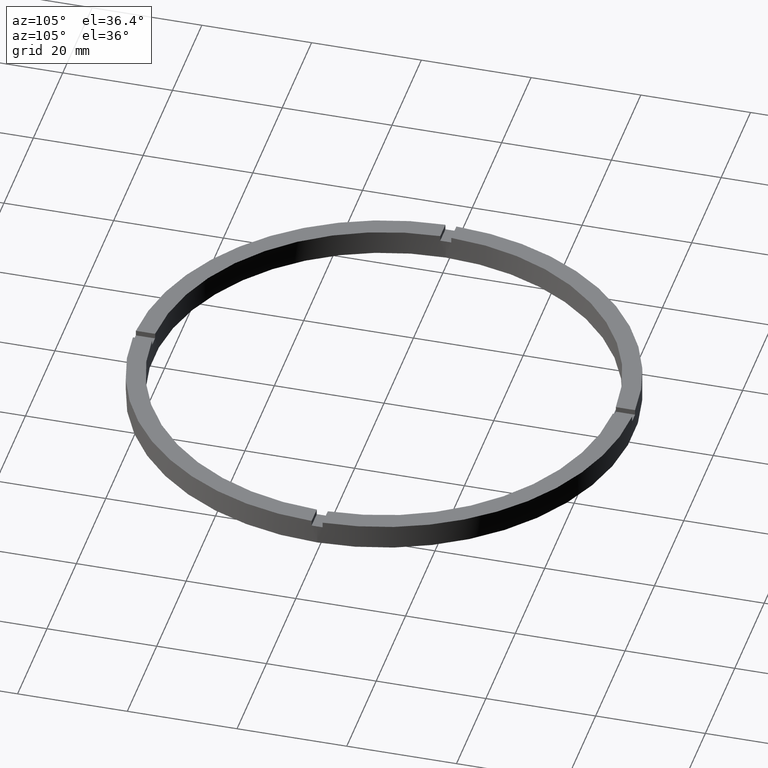
[diagram: clean part render]
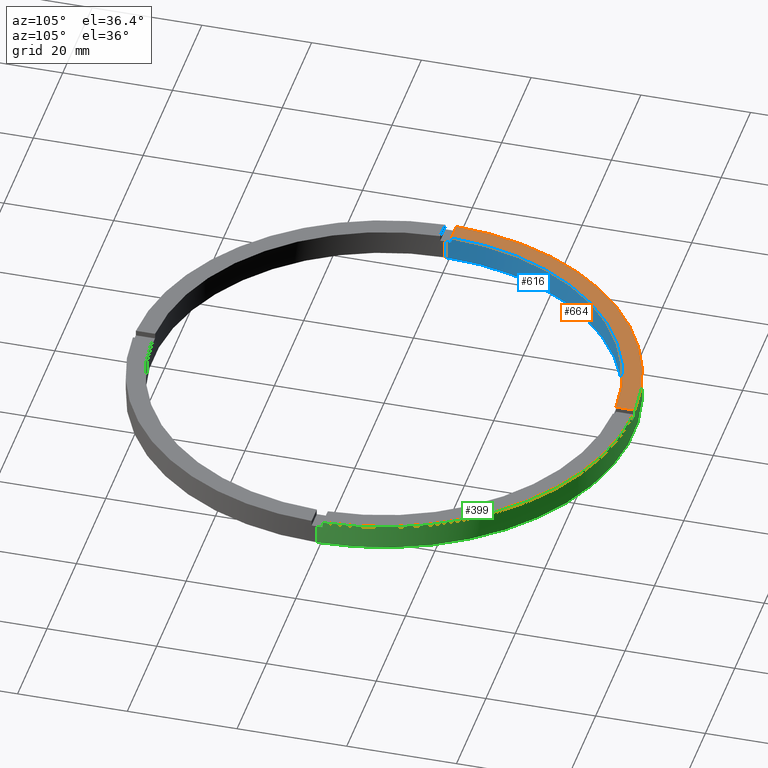
[diagram: same view with three faces highlighted in distinct colors, each labeled with its STEP entity id]
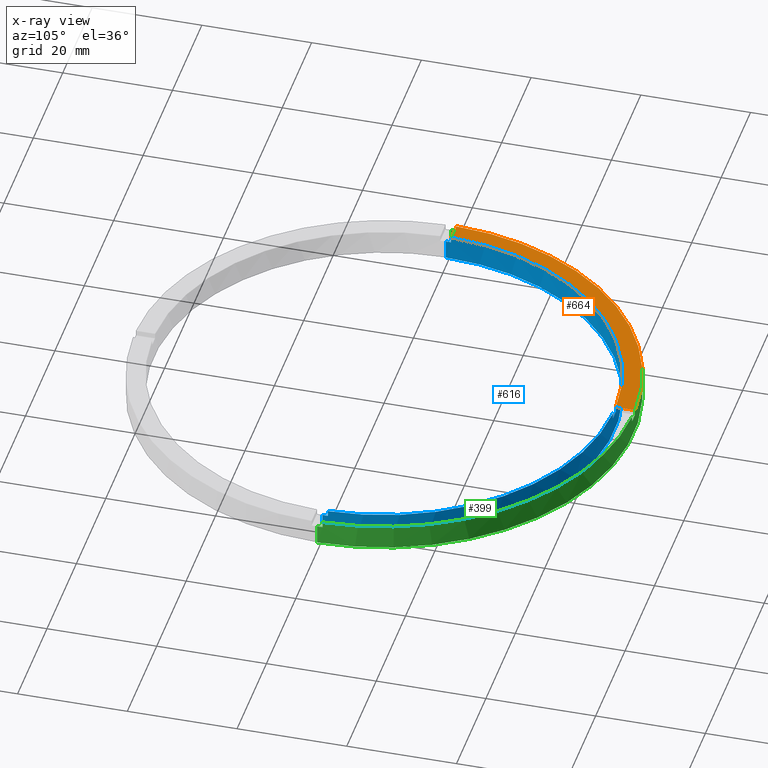
[diagram: x-ray of the same camera — body ghosted, the three highlighted faces saturated]
A machine part, auxiliary view with three faces highlighted in distinct colors.
The next image is the same camera in x-ray (body ghosted, the three faces saturated) — at least one of them is partly hidden behind the body in this view.
Their STEP definitions:

[orange] entity #664 — the highlighted planar face has unit normal (0, 0, 1).
#20 = AXIS2_PLACEMENT_3D ( 'NONE', #435, #27, #140 ) ;
#27 = DIRECTION ( 'NONE',  ( 0.000000000000000000, 0.000000000000000000, 1.000000000000000000 ) ) ;
#80 = EDGE_CURVE ( 'NONE', #759, #739, #530, .T. ) ;
#107 = CIRCLE ( 'NONE', #381, 42.00000000000000000 ) ;
#134 = CARTESIAN_POINT ( 'NONE',  ( -45.48900966167541782, 0.9999999999999701350, 4.500000000000000000 ) ) ;
#140 = DIRECTION ( 'NONE',  ( 1.000000000000000000, 0.000000000000000000, 0.000000000000000000 ) ) ;
#149 = CARTESIAN_POINT ( 'NONE',  ( 0.000000000000000000, 0.000000000000000000, 4.500000000000000000 ) ) ;
#220 = VERTEX_POINT ( 'NONE', #409 ) ;
#226 = CARTESIAN_POINT ( 'NONE',  ( 0.000000000000000000, 0.000000000000000000, 4.500000000000000000 ) ) ;
#228 = ORIENTED_EDGE ( 'NONE', *, *, #592, .F. ) ;
#244 = ORIENTED_EDGE ( 'NONE', *, *, #321, .F. ) ;
#284 = CARTESIAN_POINT ( 'NONE',  ( -1.000000000000026201, 45.48900966167541782, 4.500000000000000000 ) ) ;
#292 = DIRECTION ( 'NONE',  ( 0.000000000000000000, 0.000000000000000000, 1.000000000000000000 ) ) ;
#321 = EDGE_CURVE ( 'NONE', #777, #220, #633, .T. ) ;
#335 = EDGE_CURVE ( 'NONE', #777, #739, #362, .T. ) ;
#337 = DIRECTION ( 'NONE',  ( 1.000000000000000000, 0.000000000000000000, 0.000000000000000000 ) ) ;
#345 = PLANE ( 'NONE',  #598 ) ;
#362 = CIRCLE ( 'NONE', #20, 45.50000000000000000 ) ;
#381 = AXIS2_PLACEMENT_3D ( 'NONE', #226, #292, #337 ) ;
#406 = FACE_OUTER_BOUND ( 'NONE', #741, .T. ) ;
#409 = CARTESIAN_POINT ( 'NONE',  ( -1.000000000000026201, 41.98809355043403713, 4.500000000000000000 ) ) ;
#413 = CARTESIAN_POINT ( 'NONE',  ( -35.50000000000018474, 0.9999999999999720224, 4.500000000000000000 ) ) ;
#435 = CARTESIAN_POINT ( 'NONE',  ( 0.000000000000000000, 0.000000000000000000, 4.500000000000000000 ) ) ;
#438 = CARTESIAN_POINT ( 'NONE',  ( -41.98809355043403713, 0.9999999999999708011, 4.500000000000000000 ) ) ;
#478 = DIRECTION ( 'NONE',  ( 1.000000000000000000, 0.000000000000000000, -0.000000000000000000 ) ) ;
#487 = DIRECTION ( 'NONE',  ( 0.000000000000000000, 0.000000000000000000, 1.000000000000000000 ) ) ;
#508 = DIRECTION ( 'NONE',  ( -1.000000000000000000, -2.168404344971008621E-16, 0.000000000000000000 ) ) ;
#524 = VECTOR ( 'NONE', #508, 1000.000000000000000 ) ;
#530 = LINE ( 'NONE', #413, #524 ) ;
#531 = CARTESIAN_POINT ( 'NONE',  ( -1.000000000000026201, 35.50000000000000000, 4.500000000000000000 ) ) ;
#581 = DIRECTION ( 'NONE',  ( -0.000000000000000000, -1.000000000000000000, -0.000000000000000000 ) ) ;
#592 = EDGE_CURVE ( 'NONE', #220, #759, #107, .T. ) ;
#598 = AXIS2_PLACEMENT_3D ( 'NONE', #149, #487, #478 ) ;
#612 = VECTOR ( 'NONE', #581, 1000.000000000000000 ) ;
#633 = LINE ( 'NONE', #531, #612 ) ;
#664 = ADVANCED_FACE ( 'NONE', ( #406 ), #345, .T. ) ;
#700 = ORIENTED_EDGE ( 'NONE', *, *, #335, .T. ) ;
#702 = ORIENTED_EDGE ( 'NONE', *, *, #80, .F. ) ;
#739 = VERTEX_POINT ( 'NONE', #134 ) ;
#741 = EDGE_LOOP ( 'NONE', ( #244, #700, #702, #228 ) ) ;
#759 = VERTEX_POINT ( 'NONE', #438 ) ;
#777 = VERTEX_POINT ( 'NONE', #284 ) ;

[blue] entity #616 — the highlighted cylindrical surface (partial cylindrical patch) has radius 42 mm, axis along (-0, -0, -1).
#26 = CARTESIAN_POINT ( 'NONE',  ( 0.9999999999999737987, 41.98809355043403713, 4.500000000000000000 ) ) ;
#38 = DIRECTION ( 'NONE',  ( 1.000000000000000000, 0.000000000000000000, 0.000000000000000000 ) ) ;
#50 = EDGE_CURVE ( 'NONE', #210, #519, #241, .T. ) ;
#62 = AXIS2_PLACEMENT_3D ( 'NONE', #580, #394, #593 ) ;
#82 = CARTESIAN_POINT ( 'NONE',  ( 0.000000000000000000, 0.000000000000000000, 0.000000000000000000 ) ) ;
#84 = CIRCLE ( 'NONE', #183, 42.00000000000000000 ) ;
#85 = CARTESIAN_POINT ( 'NONE',  ( 41.98809355043403713, 0.9999999999998436806, 4.500000000000000000 ) ) ;
#87 = CARTESIAN_POINT ( 'NONE',  ( 0.000000000000000000, 0.000000000000000000, 3.499999999999999556 ) ) ;
#90 = DIRECTION ( 'NONE',  ( 0.000000000000000000, 0.000000000000000000, 1.000000000000000000 ) ) ;
#96 = DIRECTION ( 'NONE',  ( 0.000000000000000000, 0.000000000000000000, 1.000000000000000000 ) ) ;
#99 = LINE ( 'NONE', #274, #629 ) ;
#107 = CIRCLE ( 'NONE', #381, 42.00000000000000000 ) ;
#108 = EDGE_CURVE ( 'NONE', #213, #759, #99, .T. ) ;
#109 = LINE ( 'NONE', #779, #643 ) ;
#116 = LINE ( 'NONE', #222, #122 ) ;
#122 = VECTOR ( 'NONE', #761, 1000.000000000000000 ) ;
#124 = CIRCLE ( 'NONE', #591, 42.00000000000000000 ) ;
#137 = DIRECTION ( 'NONE',  ( 1.000000000000000000, 0.000000000000000000, 0.000000000000000000 ) ) ;
#139 = DIRECTION ( 'NONE',  ( 1.000000000000000000, 0.000000000000000000, 0.000000000000000000 ) ) ;
#152 = ORIENTED_EDGE ( 'NONE', *, *, #480, .T. ) ;
#157 = EDGE_LOOP ( 'NONE', ( #507, #426, #184, #195, #714, #711, #176, #199, #468, #475, #152, #451 ) ) ;
#158 = EDGE_CURVE ( 'NONE', #747, #496, #628, .T. ) ;
#167 = CARTESIAN_POINT ( 'NONE',  ( 0.000000000000000000, 0.000000000000000000, 3.499999999999999556 ) ) ;
#176 = ORIENTED_EDGE ( 'NONE', *, *, #545, .F. ) ;
#183 = AXIS2_PLACEMENT_3D ( 'NONE', #167, #96, #536 ) ;
#184 = ORIENTED_EDGE ( 'NONE', *, *, #158, .F. ) ;
#190 = DIRECTION ( 'NONE',  ( 0.000000000000000000, 0.000000000000000000, 1.000000000000000000 ) ) ;
#195 = ORIENTED_EDGE ( 'NONE', *, *, #390, .T. ) ;
#199 = ORIENTED_EDGE ( 'NONE', *, *, #592, .T. ) ;
#210 = VERTEX_POINT ( 'NONE', #221 ) ;
#213 = VERTEX_POINT ( 'NONE', #287 ) ;
#220 = VERTEX_POINT ( 'NONE', #409 ) ;
#221 = CARTESIAN_POINT ( 'NONE',  ( 0.9999999999999737987, 41.98809355043403713, 3.499999999999999556 ) ) ;
#222 = CARTESIAN_POINT ( 'NONE',  ( -1.000000000000026201, 41.98809355043403713, 4.500000000000000000 ) ) ;
#226 = CARTESIAN_POINT ( 'NONE',  ( 0.000000000000000000, 0.000000000000000000, 4.500000000000000000 ) ) ;
#241 = LINE ( 'NONE', #26, #505 ) ;
#242 = VERTEX_POINT ( 'NONE', #490 ) ;
#272 = CARTESIAN_POINT ( 'NONE',  ( -42.00000000000000000, 0.000000000000000000, 4.500000000000000000 ) ) ;
#274 = CARTESIAN_POINT ( 'NONE',  ( -41.98809355043403713, 0.9999999999999708011, 4.500000000000000000 ) ) ;
#287 = CARTESIAN_POINT ( 'NONE',  ( -41.98809355043403713, 0.9999999999999708011, 3.499999999999999556 ) ) ;
#290 = AXIS2_PLACEMENT_3D ( 'NONE', #590, #90, #137 ) ;
#292 = DIRECTION ( 'NONE',  ( 0.000000000000000000, 0.000000000000000000, 1.000000000000000000 ) ) ;
#293 = EDGE_CURVE ( 'NONE', #213, #447, #84, .T. ) ;
#317 = LINE ( 'NONE', #272, #585 ) ;
#318 = CARTESIAN_POINT ( 'NONE',  ( 0.9999999999999737987, 41.98809355043403713, 4.500000000000000000 ) ) ;
#322 = DIRECTION ( 'NONE',  ( -0.000000000000000000, -0.000000000000000000, -1.000000000000000000 ) ) ;
#326 = DIRECTION ( 'NONE',  ( 0.000000000000000000, 0.000000000000000000, 1.000000000000000000 ) ) ;
#337 = DIRECTION ( 'NONE',  ( 1.000000000000000000, 0.000000000000000000, 0.000000000000000000 ) ) ;
#361 = FACE_OUTER_BOUND ( 'NONE', #157, .T. ) ;
#381 = AXIS2_PLACEMENT_3D ( 'NONE', #226, #292, #337 ) ;
#384 = DIRECTION ( 'NONE',  ( 0.000000000000000000, 0.000000000000000000, 1.000000000000000000 ) ) ;
#390 = EDGE_CURVE ( 'NONE', #747, #519, #651, .T. ) ;
#394 = DIRECTION ( 'NONE',  ( -0.000000000000000000, -0.000000000000000000, -1.000000000000000000 ) ) ;
#402 = DIRECTION ( 'NONE',  ( -0.000000000000000000, -0.000000000000000000, -1.000000000000000000 ) ) ;
#403 = DIRECTION ( 'NONE',  ( 0.000000000000000000, -0.000000000000000000, 1.000000000000000000 ) ) ;
#409 = CARTESIAN_POINT ( 'NONE',  ( -1.000000000000026201, 41.98809355043403713, 4.500000000000000000 ) ) ;
#426 = ORIENTED_EDGE ( 'NONE', *, *, #557, .T. ) ;
#438 = CARTESIAN_POINT ( 'NONE',  ( -41.98809355043403713, 0.9999999999999708011, 4.500000000000000000 ) ) ;
#447 = VERTEX_POINT ( 'NONE', #499 ) ;
#451 = ORIENTED_EDGE ( 'NONE', *, *, #588, .F. ) ;
#460 = AXIS2_PLACEMENT_3D ( 'NONE', #87, #384, #38 ) ;
#468 = ORIENTED_EDGE ( 'NONE', *, *, #108, .F. ) ;
#475 = ORIENTED_EDGE ( 'NONE', *, *, #293, .T. ) ;
#480 = EDGE_CURVE ( 'NONE', #447, #242, #317, .T. ) ;
#490 = CARTESIAN_POINT ( 'NONE',  ( -42.00000000000000000, 0.000000000000000000, 0.000000000000000000 ) ) ;
#496 = VERTEX_POINT ( 'NONE', #618 ) ;
#499 = CARTESIAN_POINT ( 'NONE',  ( -42.00000000000000000, 0.000000000000000000, 3.499999999999999556 ) ) ;
#505 = VECTOR ( 'NONE', #190, 1000.000000000000000 ) ;
#507 = ORIENTED_EDGE ( 'NONE', *, *, #565, .F. ) ;
#519 = VERTEX_POINT ( 'NONE', #318 ) ;
#536 = DIRECTION ( 'NONE',  ( 1.000000000000000000, 0.000000000000000000, 0.000000000000000000 ) ) ;
#545 = EDGE_CURVE ( 'NONE', #220, #713, #116, .T. ) ;
#557 = EDGE_CURVE ( 'NONE', #775, #496, #649, .T. ) ;
#565 = EDGE_CURVE ( 'NONE', #775, #721, #109, .T. ) ;
#572 = CARTESIAN_POINT ( 'NONE',  ( -1.000000000000026201, 41.98809355043403713, 3.499999999999999556 ) ) ;
#573 = DIRECTION ( 'NONE',  ( -0.000000000000000000, -0.000000000000000000, -1.000000000000000000 ) ) ;
#580 = CARTESIAN_POINT ( 'NONE',  ( 0.000000000000000000, 0.000000000000000000, 4.500000000000000000 ) ) ;
#585 = VECTOR ( 'NONE', #402, 1000.000000000000000 ) ;
#586 = CARTESIAN_POINT ( 'NONE',  ( 41.98809355043403713, 0.9999999999998436806, 4.500000000000000000 ) ) ;
#588 = EDGE_CURVE ( 'NONE', #721, #242, #630, .T. ) ;
#590 = CARTESIAN_POINT ( 'NONE',  ( 0.000000000000000000, 0.000000000000000000, 4.500000000000000000 ) ) ;
#591 = AXIS2_PLACEMENT_3D ( 'NONE', #596, #403, #715 ) ;
#592 = EDGE_CURVE ( 'NONE', #220, #759, #107, .T. ) ;
#593 = DIRECTION ( 'NONE',  ( -1.000000000000000000, 0.000000000000000000, 0.000000000000000000 ) ) ;
#596 = CARTESIAN_POINT ( 'NONE',  ( 0.000000000000000000, 0.000000000000000000, 3.499999999999999556 ) ) ;
#616 = ADVANCED_FACE ( 'NONE', ( #361 ), #645, .F. ) ;
#618 = CARTESIAN_POINT ( 'NONE',  ( 41.98809355043403713, 0.9999999999998436806, 3.499999999999999556 ) ) ;
#623 = VECTOR ( 'NONE', #573, 1000.000000000000000 ) ;
#628 = LINE ( 'NONE', #586, #623 ) ;
#629 = VECTOR ( 'NONE', #675, 1000.000000000000000 ) ;
#630 = CIRCLE ( 'NONE', #755, 42.00000000000000000 ) ;
#643 = VECTOR ( 'NONE', #322, 1000.000000000000000 ) ;
#645 = CYLINDRICAL_SURFACE ( 'NONE', #62, 42.00000000000000000 ) ;
#649 = CIRCLE ( 'NONE', #460, 42.00000000000000000 ) ;
#651 = CIRCLE ( 'NONE', #290, 42.00000000000000000 ) ;
#675 = DIRECTION ( 'NONE',  ( 0.000000000000000000, 0.000000000000000000, 1.000000000000000000 ) ) ;
#679 = CARTESIAN_POINT ( 'NONE',  ( 42.00000000000000000, 5.143516556418883322E-15, 0.000000000000000000 ) ) ;
#683 = CARTESIAN_POINT ( 'NONE',  ( 42.00000000000000000, 5.143516556418883322E-15, 3.499999999999999556 ) ) ;
#687 = EDGE_CURVE ( 'NONE', #210, #713, #124, .T. ) ;
#711 = ORIENTED_EDGE ( 'NONE', *, *, #687, .T. ) ;
#713 = VERTEX_POINT ( 'NONE', #572 ) ;
#714 = ORIENTED_EDGE ( 'NONE', *, *, #50, .F. ) ;
#715 = DIRECTION ( 'NONE',  ( 1.000000000000000000, 0.000000000000000000, 0.000000000000000000 ) ) ;
#721 = VERTEX_POINT ( 'NONE', #679 ) ;
#747 = VERTEX_POINT ( 'NONE', #85 ) ;
#755 = AXIS2_PLACEMENT_3D ( 'NONE', #82, #326, #139 ) ;
#759 = VERTEX_POINT ( 'NONE', #438 ) ;
#761 = DIRECTION ( 'NONE',  ( -0.000000000000000000, -0.000000000000000000, -1.000000000000000000 ) ) ;
#775 = VERTEX_POINT ( 'NONE', #683 ) ;
#779 = CARTESIAN_POINT ( 'NONE',  ( 42.00000000000000000, 5.143516556418883322E-15, 4.500000000000000000 ) ) ;

[green] entity #399 — the highlighted cylindrical surface (partial cylindrical patch) has radius 45.5 mm, axis along (-0, -0, -1).
#8 = CARTESIAN_POINT ( 'NONE',  ( -1.000000000000026201, 45.48900966167541782, 4.500000000000000000 ) ) ;
#14 = CARTESIAN_POINT ( 'NONE',  ( 45.48900966167542492, 0.9999999999998439026, 4.500000000000000000 ) ) ;
#20 = AXIS2_PLACEMENT_3D ( 'NONE', #435, #27, #140 ) ;
#22 = CARTESIAN_POINT ( 'NONE',  ( 0.9999999999999737987, 45.48900966167541782, 3.499999999999999556 ) ) ;
#27 = DIRECTION ( 'NONE',  ( 0.000000000000000000, 0.000000000000000000, 1.000000000000000000 ) ) ;
#34 = CARTESIAN_POINT ( 'NONE',  ( -45.48900966167541782, 0.9999999999999701350, 3.499999999999999556 ) ) ;
#35 = DIRECTION ( 'NONE',  ( 1.000000000000000000, 0.000000000000000000, 0.000000000000000000 ) ) ;
#49 = DIRECTION ( 'NONE',  ( 0.000000000000000000, 0.000000000000000000, 1.000000000000000000 ) ) ;
#53 = CARTESIAN_POINT ( 'NONE',  ( 0.000000000000000000, 0.000000000000000000, 3.499999999999999556 ) ) ;
#58 = DIRECTION ( 'NONE',  ( -0.000000000000000000, -0.000000000000000000, -1.000000000000000000 ) ) ;
#60 = CYLINDRICAL_SURFACE ( 'NONE', #414, 45.50000000000000000 ) ;
#63 = CARTESIAN_POINT ( 'NONE',  ( 45.50000000000000000, 5.572142936120457130E-15, 4.500000000000000000 ) ) ;
#72 = AXIS2_PLACEMENT_3D ( 'NONE', #491, #485, #724 ) ;
#77 = VECTOR ( 'NONE', #502, 1000.000000000000000 ) ;
#81 = VECTOR ( 'NONE', #644, 1000.000000000000000 ) ;
#97 = EDGE_CURVE ( 'NONE', #188, #470, #264, .T. ) ;
#98 = DIRECTION ( 'NONE',  ( 1.000000000000000000, 0.000000000000000000, 0.000000000000000000 ) ) ;
#104 = CARTESIAN_POINT ( 'NONE',  ( 0.000000000000000000, 0.000000000000000000, 4.500000000000000000 ) ) ;
#118 = LINE ( 'NONE', #529, #369 ) ;
#134 = CARTESIAN_POINT ( 'NONE',  ( -45.48900966167541782, 0.9999999999999701350, 4.500000000000000000 ) ) ;
#140 = DIRECTION ( 'NONE',  ( 1.000000000000000000, 0.000000000000000000, 0.000000000000000000 ) ) ;
#146 = DIRECTION ( 'NONE',  ( -0.000000000000000000, -0.000000000000000000, -1.000000000000000000 ) ) ;
#147 = EDGE_CURVE ( 'NONE', #433, #470, #331, .T. ) ;
#153 = ORIENTED_EDGE ( 'NONE', *, *, #528, .T. ) ;
#154 = ORIENTED_EDGE ( 'NONE', *, *, #658, .F. ) ;
#156 = ORIENTED_EDGE ( 'NONE', *, *, #681, .F. ) ;
#160 = ORIENTED_EDGE ( 'NONE', *, *, #521, .F. ) ;
#164 = VERTEX_POINT ( 'NONE', #374 ) ;
#169 = CARTESIAN_POINT ( 'NONE',  ( 45.48900966167542492, 0.9999999999998439026, 3.499999999999999556 ) ) ;
#171 = VERTEX_POINT ( 'NONE', #684 ) ;
#188 = VERTEX_POINT ( 'NONE', #429 ) ;
#212 = CARTESIAN_POINT ( 'NONE',  ( -45.50000000000000000, 0.000000000000000000, 4.500000000000000000 ) ) ;
#232 = DIRECTION ( 'NONE',  ( 0.000000000000000000, 0.000000000000000000, 1.000000000000000000 ) ) ;
#257 = ORIENTED_EDGE ( 'NONE', *, *, #279, .T. ) ;
#264 = LINE ( 'NONE', #14, #77 ) ;
#279 = EDGE_CURVE ( 'NONE', #433, #465, #338, .T. ) ;
#284 = CARTESIAN_POINT ( 'NONE',  ( -1.000000000000026201, 45.48900966167541782, 4.500000000000000000 ) ) ;
#300 = DIRECTION ( 'NONE',  ( 1.000000000000000000, 0.000000000000000000, 0.000000000000000000 ) ) ;
#324 = EDGE_CURVE ( 'NONE', #717, #164, #354, .T. ) ;
#331 = CIRCLE ( 'NONE', #474, 45.50000000000000000 ) ;
#335 = EDGE_CURVE ( 'NONE', #777, #739, #362, .T. ) ;
#338 = LINE ( 'NONE', #63, #340 ) ;
#340 = VECTOR ( 'NONE', #146, 1000.000000000000000 ) ;
#354 = LINE ( 'NONE', #212, #81 ) ;
#355 = LINE ( 'NONE', #458, #654 ) ;
#362 = CIRCLE ( 'NONE', #20, 45.50000000000000000 ) ;
#369 = VECTOR ( 'NONE', #583, 1000.000000000000000 ) ;
#374 = CARTESIAN_POINT ( 'NONE',  ( -45.50000000000000000, 0.000000000000000000, 0.000000000000000000 ) ) ;
#375 = FACE_OUTER_BOUND ( 'NONE', #452, .T. ) ;
#376 = VECTOR ( 'NONE', #58, 1000.000000000000000 ) ;
#383 = CARTESIAN_POINT ( 'NONE',  ( -45.50000000000000000, 0.000000000000000000, 3.499999999999999556 ) ) ;
#396 = CIRCLE ( 'NONE', #489, 45.50000000000000000 ) ;
#399 = ADVANCED_FACE ( 'NONE', ( #375 ), #60, .T. ) ;
#400 = CARTESIAN_POINT ( 'NONE',  ( 45.50000000000000000, 5.572142936120457130E-15, 3.499999999999999556 ) ) ;
#405 = DIRECTION ( 'NONE',  ( -0.000000000000000000, -0.000000000000000000, -1.000000000000000000 ) ) ;
#414 = AXIS2_PLACEMENT_3D ( 'NONE', #493, #405, #544 ) ;
#425 = ORIENTED_EDGE ( 'NONE', *, *, #551, .T. ) ;
#428 = ORIENTED_EDGE ( 'NONE', *, *, #147, .F. ) ;
#429 = CARTESIAN_POINT ( 'NONE',  ( 45.48900966167542492, 0.9999999999998439026, 4.500000000000000000 ) ) ;
#432 = CARTESIAN_POINT ( 'NONE',  ( 0.000000000000000000, 0.000000000000000000, 0.000000000000000000 ) ) ;
#433 = VERTEX_POINT ( 'NONE', #400 ) ;
#435 = CARTESIAN_POINT ( 'NONE',  ( 0.000000000000000000, 0.000000000000000000, 4.500000000000000000 ) ) ;
#439 = ORIENTED_EDGE ( 'NONE', *, *, #324, .F. ) ;
#452 = EDGE_LOOP ( 'NONE', ( #428, #257, #736, #439, #154, #514, #703, #153, #160, #425, #156, #709 ) ) ;
#453 = VERTEX_POINT ( 'NONE', #547 ) ;
#458 = CARTESIAN_POINT ( 'NONE',  ( -45.48900966167541782, 0.9999999999999701350, 4.500000000000000000 ) ) ;
#465 = VERTEX_POINT ( 'NONE', #740 ) ;
#470 = VERTEX_POINT ( 'NONE', #169 ) ;
#474 = AXIS2_PLACEMENT_3D ( 'NONE', #758, #680, #513 ) ;
#485 = DIRECTION ( 'NONE',  ( 0.000000000000000000, -0.000000000000000000, 1.000000000000000000 ) ) ;
#489 = AXIS2_PLACEMENT_3D ( 'NONE', #53, #232, #98 ) ;
#491 = CARTESIAN_POINT ( 'NONE',  ( 0.000000000000000000, 0.000000000000000000, 3.499999999999999556 ) ) ;
#493 = CARTESIAN_POINT ( 'NONE',  ( 0.000000000000000000, 0.000000000000000000, 4.500000000000000000 ) ) ;
#502 = DIRECTION ( 'NONE',  ( -0.000000000000000000, -0.000000000000000000, -1.000000000000000000 ) ) ;
#513 = DIRECTION ( 'NONE',  ( 1.000000000000000000, 0.000000000000000000, 0.000000000000000000 ) ) ;
#514 = ORIENTED_EDGE ( 'NONE', *, *, #540, .T. ) ;
#521 = EDGE_CURVE ( 'NONE', #735, #453, #642, .T. ) ;
#528 = EDGE_CURVE ( 'NONE', #777, #453, #660, .T. ) ;
#529 = CARTESIAN_POINT ( 'NONE',  ( 0.9999999999999737987, 45.48900966167541782, 4.500000000000000000 ) ) ;
#540 = EDGE_CURVE ( 'NONE', #716, #739, #355, .T. ) ;
#541 = DIRECTION ( 'NONE',  ( 0.000000000000000000, 0.000000000000000000, 1.000000000000000000 ) ) ;
#544 = DIRECTION ( 'NONE',  ( -1.000000000000000000, 0.000000000000000000, 0.000000000000000000 ) ) ;
#547 = CARTESIAN_POINT ( 'NONE',  ( -1.000000000000026201, 45.48900966167541782, 3.499999999999999556 ) ) ;
#551 = EDGE_CURVE ( 'NONE', #735, #171, #118, .T. ) ;
#583 = DIRECTION ( 'NONE',  ( 0.000000000000000000, 0.000000000000000000, 1.000000000000000000 ) ) ;
#621 = AXIS2_PLACEMENT_3D ( 'NONE', #432, #49, #35 ) ;
#642 = CIRCLE ( 'NONE', #72, 45.50000000000000000 ) ;
#644 = DIRECTION ( 'NONE',  ( -0.000000000000000000, -0.000000000000000000, -1.000000000000000000 ) ) ;
#653 = EDGE_CURVE ( 'NONE', #465, #164, #662, .T. ) ;
#654 = VECTOR ( 'NONE', #699, 1000.000000000000000 ) ;
#658 = EDGE_CURVE ( 'NONE', #716, #717, #396, .T. ) ;
#660 = LINE ( 'NONE', #8, #376 ) ;
#662 = CIRCLE ( 'NONE', #621, 45.50000000000000000 ) ;
#672 = CIRCLE ( 'NONE', #692, 45.50000000000000000 ) ;
#680 = DIRECTION ( 'NONE',  ( 0.000000000000000000, 0.000000000000000000, 1.000000000000000000 ) ) ;
#681 = EDGE_CURVE ( 'NONE', #188, #171, #672, .T. ) ;
#684 = CARTESIAN_POINT ( 'NONE',  ( 0.9999999999999737987, 45.48900966167541782, 4.500000000000000000 ) ) ;
#692 = AXIS2_PLACEMENT_3D ( 'NONE', #104, #541, #300 ) ;
#699 = DIRECTION ( 'NONE',  ( 0.000000000000000000, 0.000000000000000000, 1.000000000000000000 ) ) ;
#703 = ORIENTED_EDGE ( 'NONE', *, *, #335, .F. ) ;
#709 = ORIENTED_EDGE ( 'NONE', *, *, #97, .T. ) ;
#716 = VERTEX_POINT ( 'NONE', #34 ) ;
#717 = VERTEX_POINT ( 'NONE', #383 ) ;
#724 = DIRECTION ( 'NONE',  ( 1.000000000000000000, 0.000000000000000000, 0.000000000000000000 ) ) ;
#735 = VERTEX_POINT ( 'NONE', #22 ) ;
#736 = ORIENTED_EDGE ( 'NONE', *, *, #653, .T. ) ;
#739 = VERTEX_POINT ( 'NONE', #134 ) ;
#740 = CARTESIAN_POINT ( 'NONE',  ( 45.50000000000000000, 5.572142936120457130E-15, 0.000000000000000000 ) ) ;
#758 = CARTESIAN_POINT ( 'NONE',  ( 0.000000000000000000, 0.000000000000000000, 3.499999999999999556 ) ) ;
#777 = VERTEX_POINT ( 'NONE', #284 ) ;